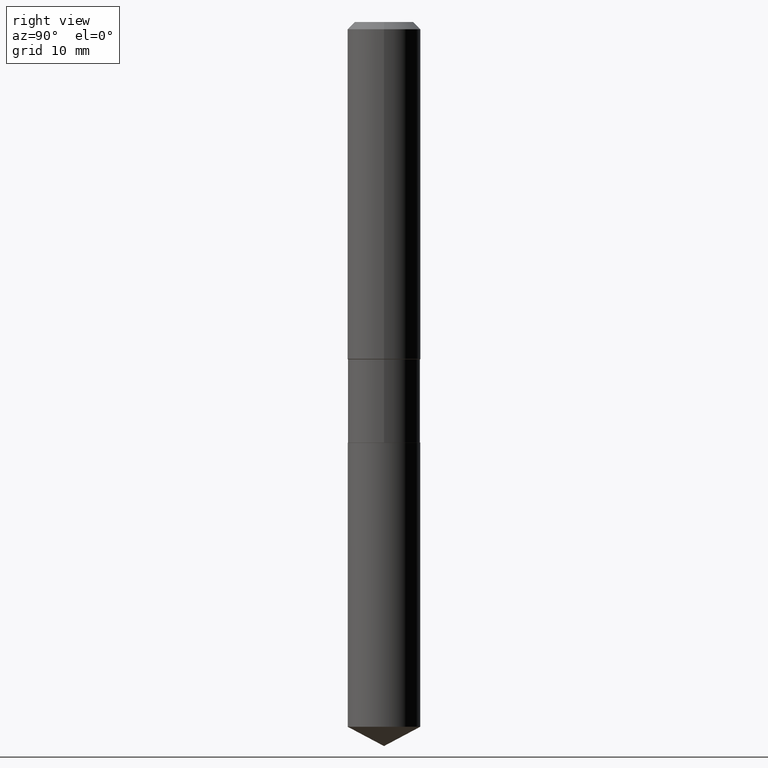
[diagram: clean part render]
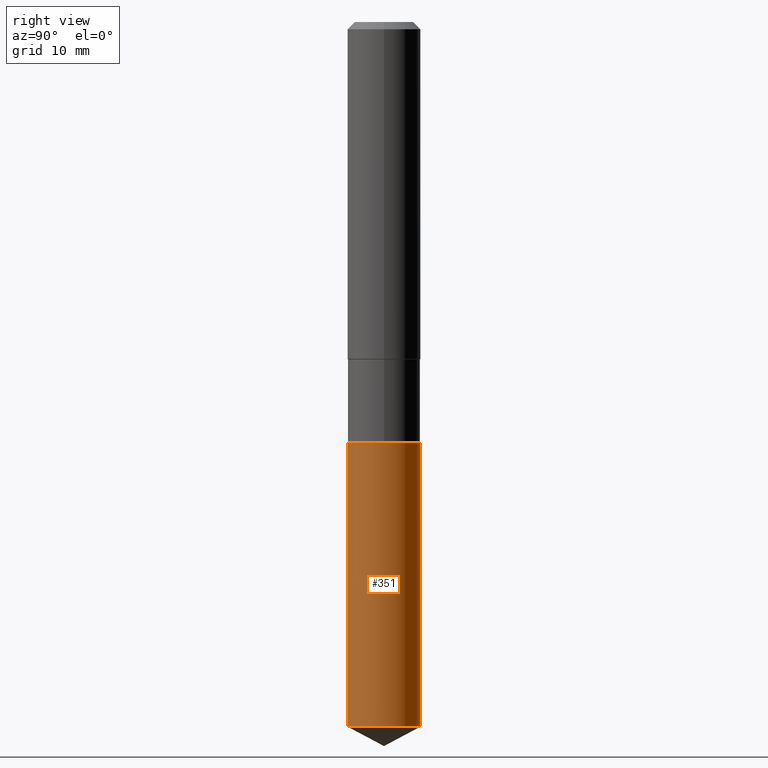
[diagram: same view with one face highlighted and labeled with its STEP entity id]
A machine part, right view. The second image highlights one B-rep face of the part: STEP entity #351.
In plain terms, the highlighted cylindrical surface (edge-blend (fillet) strip) has radius 3.9497 mm, axis along (-0, 0, 1).
Its self-contained STEP definition (entity closure, byte-faithful):
#2 = FACE_OUTER_BOUND ( 'NONE', #451, .T. ) ;
#7 = LINE ( 'NONE', #466, #361 ) ;
#9 = ORIENTED_EDGE ( 'NONE', *, *, #443, .F. ) ;
#32 = EDGE_CURVE ( 'NONE', #442, #433, #400, .T. ) ;
#38 = ORIENTED_EDGE ( 'NONE', *, *, #423, .T. ) ;
#54 = VECTOR ( 'NONE', #175, 39.37007874015748143 ) ;
#64 = AXIS2_PLACEMENT_3D ( 'NONE', #241, #97, #352 ) ;
#77 = VERTEX_POINT ( 'NONE', #108 ) ;
#83 = CARTESIAN_POINT ( 'NONE',  ( 4.418962132776540947E-29, -6.309106779289563178E-15, -1.806999999999999940 ) ) ;
#89 = DIRECTION ( 'NONE',  ( -2.445564275937818742E-29, 3.491344620723504179E-15, 1.000000000000000000 ) ) ;
#97 = DIRECTION ( 'NONE',  ( -2.445564275937818461E-29, 3.491344620723504179E-15, 1.000000000000000000 ) ) ;
#108 = CARTESIAN_POINT ( 'NONE',  ( 1.104893954107029543E-15, 0.1554999999999894245, -3.027519183376641276 ) ) ;
#124 = DIRECTION ( 'NONE',  ( -6.982962677686265133E-15, -1.000000000000000000, 3.513630860018345064E-15 ) ) ;
#154 = ORIENTED_EDGE ( 'NONE', *, *, #32, .F. ) ;
#158 = CYLINDRICAL_SURFACE ( 'NONE', #430, 0.1554999999999999993 ) ;
#163 = CIRCLE ( 'NONE', #212, 0.1554999999999999993 ) ;
#170 = CARTESIAN_POINT ( 'NONE',  ( 7.403820245739254585E-29, -1.057035986466144148E-14, -3.027519183376640832 ) ) ;
#173 = DIRECTION ( 'NONE',  ( -6.982962677686265133E-15, -1.000000000000000000, 3.513630860018345064E-15 ) ) ;
#175 = DIRECTION ( 'NONE',  ( -2.445564275937818742E-29, 3.491344620723504179E-15, 1.000000000000000000 ) ) ;
#178 = CIRCLE ( 'NONE', #64, 0.1554999999999999993 ) ;
#186 = CARTESIAN_POINT ( 'NONE',  ( -1.085850696380170092E-15, -0.1555000000000062998, -1.806999999999999273 ) ) ;
#209 = ORIENTED_EDGE ( 'NONE', *, *, #213, .T. ) ;
#212 = AXIS2_PLACEMENT_3D ( 'NONE', #170, #436, #173 ) ;
#213 = EDGE_CURVE ( 'NONE', #77, #240, #7, .T. ) ;
#240 = VERTEX_POINT ( 'NONE', #386 ) ;
#241 = CARTESIAN_POINT ( 'NONE',  ( 4.418962132776540947E-29, -6.309106779289563178E-15, -1.806999999999999940 ) ) ;
#324 = CARTESIAN_POINT ( 'NONE',  ( -1.085850696380140313E-15, -0.1555000000000105465, -3.027519183376639944 ) ) ;
#351 = ADVANCED_FACE ( 'NONE', ( #2 ), #158, .T. ) ;
#352 = DIRECTION ( 'NONE',  ( -6.982962677686265133E-15, -1.000000000000000000, 3.513630860018345064E-15 ) ) ;
#361 = VECTOR ( 'NONE', #89, 39.37007874015748143 ) ;
#386 = CARTESIAN_POINT ( 'NONE',  ( 1.104893954107029740E-15, 0.1554999999999936711, -1.807000000000000384 ) ) ;
#400 = LINE ( 'NONE', #186, #54 ) ;
#423 = EDGE_CURVE ( 'NONE', #442, #77, #163, .T. ) ;
#430 = AXIS2_PLACEMENT_3D ( 'NONE', #83, #459, #124 ) ;
#433 = VERTEX_POINT ( 'NONE', #470 ) ;
#436 = DIRECTION ( 'NONE',  ( -2.445564275937818461E-29, 3.491344620723504179E-15, 1.000000000000000000 ) ) ;
#442 = VERTEX_POINT ( 'NONE', #324 ) ;
#443 = EDGE_CURVE ( 'NONE', #433, #240, #178, .T. ) ;
#451 = EDGE_LOOP ( 'NONE', ( #38, #209, #9, #154 ) ) ;
#459 = DIRECTION ( 'NONE',  ( -2.445564275937818461E-29, 3.491344620723504179E-15, 1.000000000000000000 ) ) ;
#466 = CARTESIAN_POINT ( 'NONE',  ( 1.104893954106999566E-15, 0.1554999999999936711, -1.807000000000000384 ) ) ;
#470 = CARTESIAN_POINT ( 'NONE',  ( -1.085850696380170092E-15, -0.1555000000000062998, -1.806999999999999273 ) ) ;